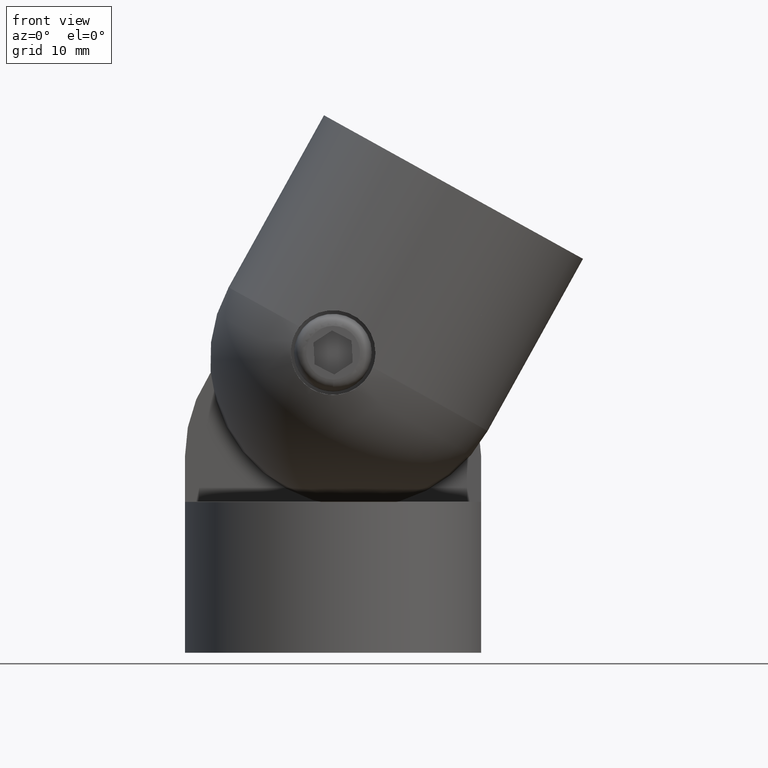
[diagram: clean part render]
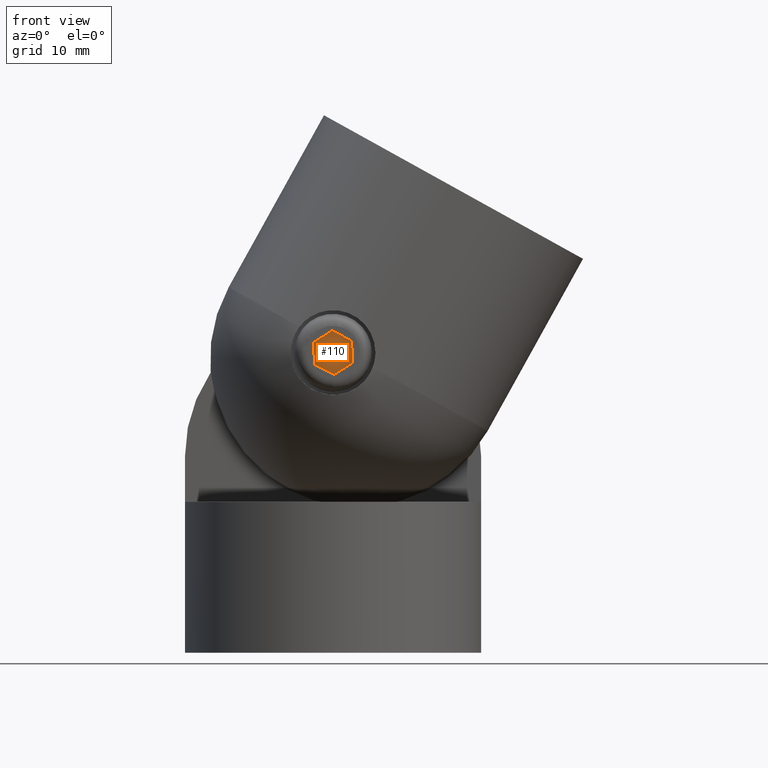
[diagram: same view with one face highlighted and labeled with its STEP entity id]
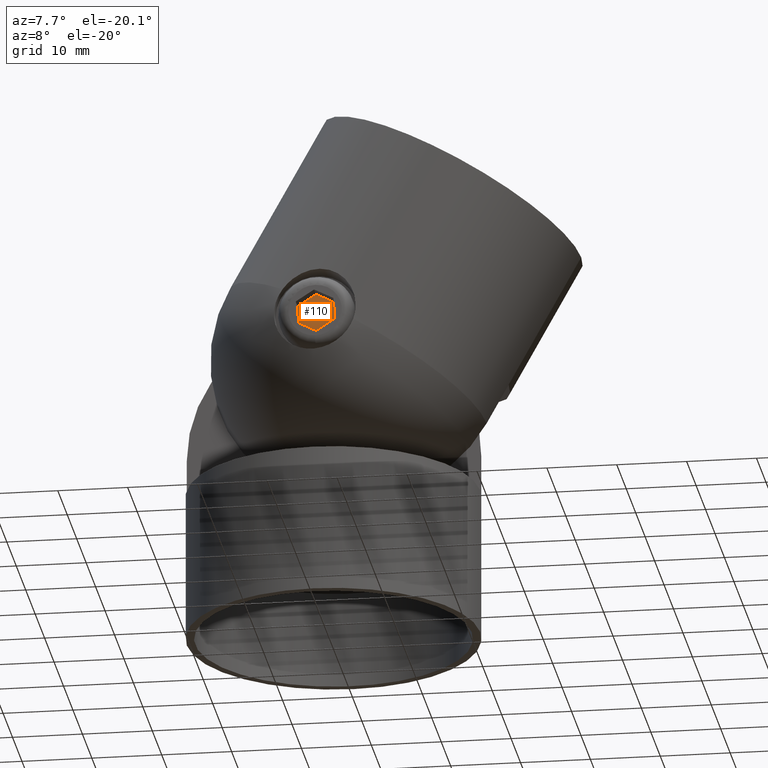
[diagram: same view with one face highlighted and labeled with its STEP entity id]
A machine part, front view. The second image highlights one B-rep face of the part: STEP entity #110.
A second angle (auxiliary view) of the same face is appended — the face is thin or edge-on in the first view.
In plain terms, the highlighted planar face has unit normal (0, -1, 0).
Its self-contained STEP definition (entity closure, byte-faithful):
#68=FACE_OUTER_BOUND('',#222,.T.);
#85=PLANE('',#478);
#110=ADVANCED_FACE('',(#68),#85,.T.);
#132=LINE('',#762,#156);
#135=LINE('',#768,#159);
#137=LINE('',#772,#161);
#139=LINE('',#776,#163);
#141=LINE('',#780,#165);
#142=LINE('',#782,#166);
#156=VECTOR('',#569,1.);
#159=VECTOR('',#574,1.);
#161=VECTOR('',#578,1.);
#163=VECTOR('',#582,1.);
#165=VECTOR('',#586,1.);
#166=VECTOR('',#589,1.);
#222=EDGE_LOOP('',(#307,#308,#309,#310,#311,#312));
#307=ORIENTED_EDGE('',*,*,#383,.F.);
#308=ORIENTED_EDGE('',*,*,#386,.F.);
#309=ORIENTED_EDGE('',*,*,#388,.F.);
#310=ORIENTED_EDGE('',*,*,#390,.F.);
#311=ORIENTED_EDGE('',*,*,#392,.F.);
#312=ORIENTED_EDGE('',*,*,#393,.F.);
#343=VERTEX_POINT('',#761);
#344=VERTEX_POINT('',#763);
#345=VERTEX_POINT('',#767);
#346=VERTEX_POINT('',#771);
#347=VERTEX_POINT('',#775);
#348=VERTEX_POINT('',#779);
#383=EDGE_CURVE('',#343,#344,#132,.T.);
#386=EDGE_CURVE('',#345,#343,#135,.T.);
#388=EDGE_CURVE('',#346,#345,#137,.T.);
#390=EDGE_CURVE('',#347,#346,#139,.T.);
#392=EDGE_CURVE('',#348,#347,#141,.T.);
#393=EDGE_CURVE('',#344,#348,#142,.T.);
#478=AXIS2_PLACEMENT_3D('',#784,#592,#593);
#569=DIRECTION('',(-0.891006524188366,0.,0.45399049973955));
#574=DIRECTION('',(-0.838670567945426,0.,-0.544639035015025));
#578=DIRECTION('',(0.0523359562429438,0.,-0.998629534754574));
#582=DIRECTION('',(0.891006524188368,0.,-0.453990499739546));
#586=DIRECTION('',(0.838670567945424,0.,0.544639035015027));
#589=DIRECTION('',(-0.0523359562429438,0.,0.998629534754574));
#592=DIRECTION('',(0.,-1.,0.));
#593=DIRECTION('',(0.,0.,-1.));
#761=CARTESIAN_POINT('',(0.163167363495866,-17.5,39.4515812341592));
#762=CARTESIAN_POINT('',(-2.61471606208941,-17.5,40.8669835352236));
#763=CARTESIAN_POINT('',(-2.61471606208941,-17.5,40.8669835352236));
#767=CARTESIAN_POINT('',(2.77788342558527,-17.5,41.1495976989355));
#768=CARTESIAN_POINT('',(0.163167363495852,-17.5,39.4515812341592));
#771=CARTESIAN_POINT('',(2.61471606208942,-17.5,44.2630164647764));
#772=CARTESIAN_POINT('',(2.77788342558528,-17.5,41.1495976989355));
#775=CARTESIAN_POINT('',(-0.163167363495866,-17.5,45.6784187658408));
#776=CARTESIAN_POINT('',(2.61471606208941,-17.5,44.2630164647764));
#779=CARTESIAN_POINT('',(-2.77788342558529,-17.5,43.9804023010645));
#780=CARTESIAN_POINT('',(-0.163167363495873,-17.5,45.6784187658408));
#782=CARTESIAN_POINT('',(-2.77788342558518,-17.5,43.9804023010645));
#784=CARTESIAN_POINT('',(0.,-17.5,0.));